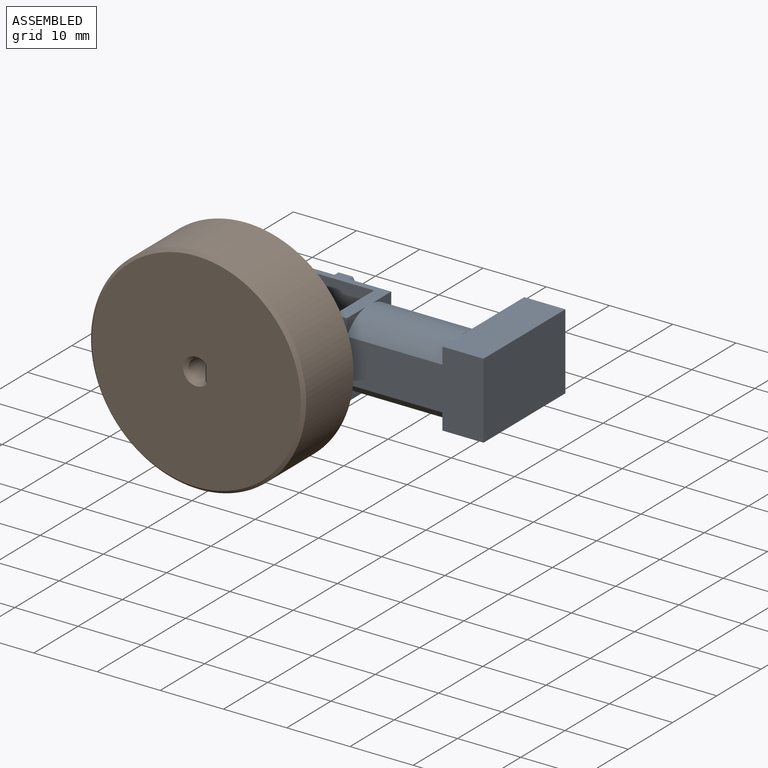
[diagram: assembled view]
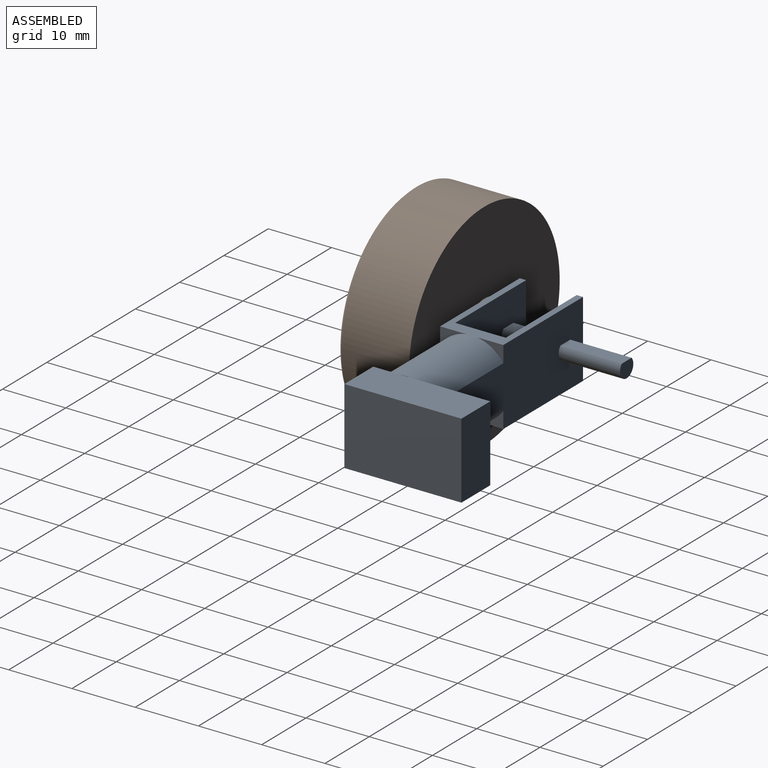
[diagram: assembled view, second angle]
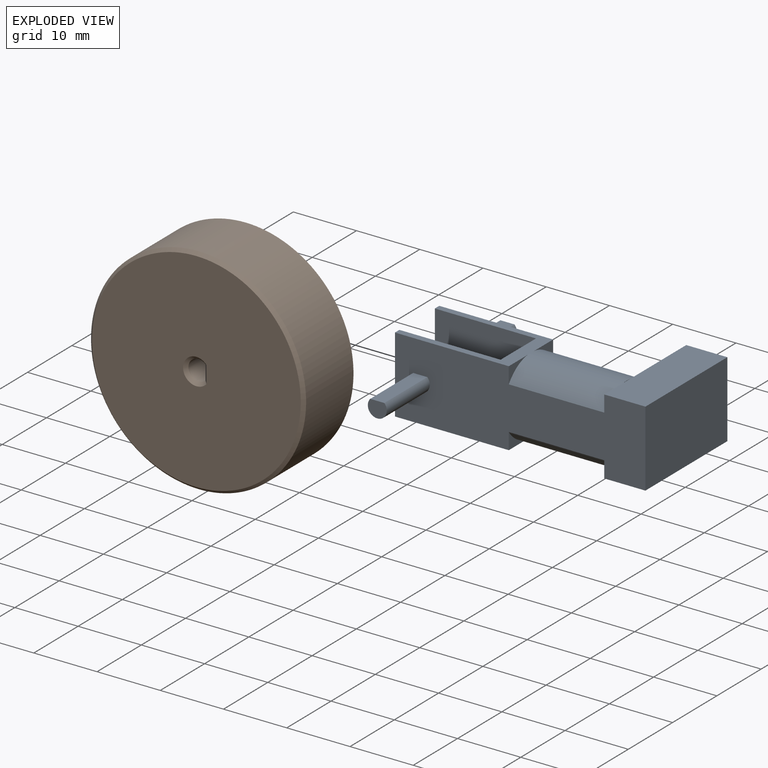
[diagram: exploded view]
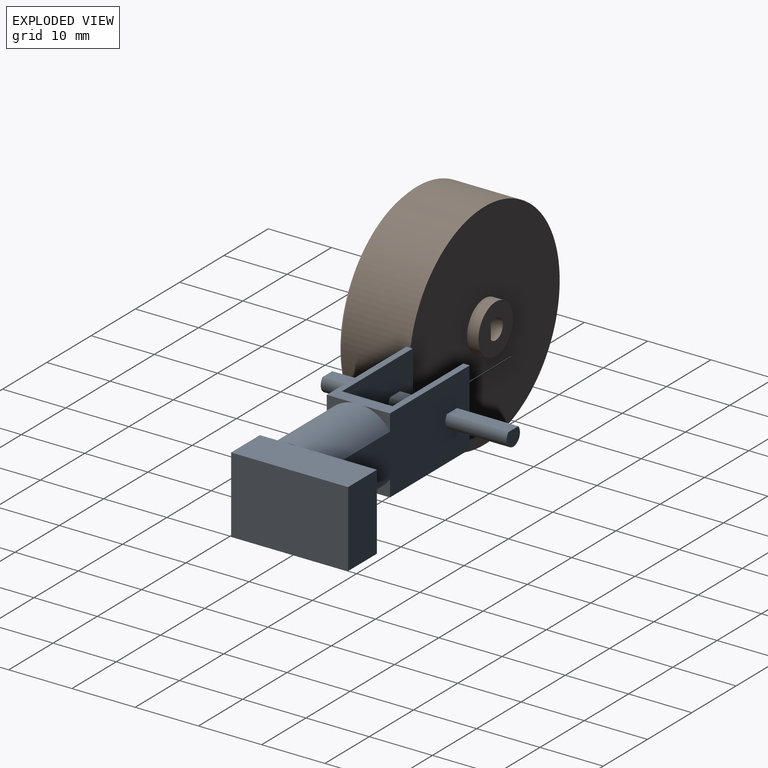
[diagram: exploded view, second angle]
FCSTD DOCUMENT  (FreeCAD 0.21R33668 +7 (Git))
Label: robot-motor-holder
License: All rights reserved
LicenseURL: https://en.wikipedia.org/wiki/All_rights_reserved
objects: Sketcher::SketchObject×7, PartDesign::Plane×6, PartDesign::Pad×4, App::Link×2, PartDesign::Pocket×2, PartDesign::AdditiveLoft×1, PartDesign::Mirrored×1, PartDesign::Body×1, App::LinkGroup×1
note: 29 computed .brp shape members not serialized (recipe doc carries the construction recipe); baked Part::Feature solids carry a one-line shape summary decoded from their .brp
EXTERNAL_REF file=Off-the-shelf/GW1812.FCStd obj=Body
EXTERNAL_REF file=robot-wheel.FCStd obj=Body

FEATURE [App::Link] Link  label="motor"
  LinkedObject = -> <external Off-the-shelf/GW1812.FCStd>#Body
FEATURE [PartDesign::Plane] DatumPlane
  AttachmentOffset = pos=(0,0,-4.1) rot=(0,0,1;0rad)
  Length = 60
  MapMode = 5
  Placement = pos=(-4.1,9e-16,-9e-16) rot=(0.57735,0.57735,0.57735;2.0944rad)
  ResizeMode = 0
  Support = -> [YZ_Plane]
  Width = 60
FEATURE [Sketcher::SketchObject] Sketch
  FullyConstrained = true
  MapMode = 5
  Placement = pos=(-4.1,9e-16,-9e-16) rot=(0.57735,0.57735,0.57735;2.0944rad)
  Support = -> [DatumPlane]
  sketch-geometry (14):
    g0: LineSegment StartX=-5.1 StartY=7 StartZ=0 EndX=5.1 EndY=7 EndZ=0
    g1: LineSegment StartX=5.1 StartY=7 StartZ=0 EndX=5.1 EndY=-7 EndZ=0
    g2: LineSegment StartX=5.1 StartY=-7 StartZ=0 EndX=-5.1 EndY=-7 EndZ=0
    g3: LineSegment StartX=-5.1 StartY=-7 StartZ=0 EndX=-5.1 EndY=7 EndZ=0
    g4: LineSegment StartX=-5.1 StartY=7 StartZ=0 EndX=-5.1 EndY=6.1 EndZ=0
    g5: LineSegment StartX=-5.1 StartY=6.1 StartZ=0 EndX=-3.9 EndY=6.1 EndZ=0
    g6: LineSegment StartX=-3.9 StartY=6.1 StartZ=0 EndX=-3.9 EndY=-6.1 EndZ=0
    g7: LineSegment StartX=-3.9 StartY=-6.1 StartZ=0 EndX=-5.1 EndY=-6.1 EndZ=0
    g8: LineSegment StartX=-5.1 StartY=-6.1 StartZ=0 EndX=-5.1 EndY=-7 EndZ=0
    g9: LineSegment StartX=5.1 StartY=7 StartZ=0 EndX=5.1 EndY=6.1 EndZ=0
    g10: LineSegment StartX=5.1 StartY=6.1 StartZ=0 EndX=3.9 EndY=6.1 EndZ=0
    g11: LineSegment StartX=3.9 StartY=6.1 StartZ=0 EndX=3.9 EndY=-6.1 EndZ=0
    g12: LineSegment StartX=3.9 StartY=-6.1 StartZ=0 EndX=5.1 EndY=-6.1 EndZ=0
    g13: LineSegment StartX=5.1 StartY=-6.1 StartZ=0 EndX=5.1 EndY=-7 EndZ=0
  constraints (39):
    c: Coincident(g0,g1)
    c: Coincident(g1,g2)
    c: Coincident(g2,g3)
    c: Coincident(g3,g0)
    c: Horizontal(g0)
    c: Horizontal(g2)
    c: Symmetric(g0,g1,g-1)
    c: DistanceX(g0,g0) = 10.2
    c: DistanceY(g2,g0) = 14
    c: Coincident(g0,g4)
    c: PointOnObject(g4,g3)
    c: Vertical(g4)
    c: Coincident(g4,g5)
    c: Horizontal(g5)
    c: Coincident(g5,g6)
    c: Vertical(g6)
    c: Coincident(g6,g7)
    c: PointOnObject(g7,g3)
    c: Horizontal(g7)
    c: Coincident(g7,g8)
    c: Coincident(g8,g2)
    c: DistanceY(g4,g4) = 0.9
    c: Coincident(g0,g9)
    c: PointOnObject(g9,g1)
    c: Vertical(g9)
    c: Coincident(g9,g10)
    c: Horizontal(g10)
    c: Coincident(g10,g11)
    c: Vertical(g11)
    c: Coincident(g11,g12)
    c: PointOnObject(g12,g1)
    c: Horizontal(g12)
    c: Coincident(g12,g13)
    c: Coincident(g13,g2)
    c: Equal(g9,g4)
    c: Equal(g4,g8)
    c: Equal(g8,g13)
    c: Equal(g7,g12)
    c: DistanceX(g5,g5) = 1.2
FEATURE [PartDesign::Pad] Pad
  Direction = (1,-1e-16,1e-16)
  Length = 18.4
  Length2 = 10
  Placement = pos=(-4.1,1e-15,-1e-15) rot=(0.57735,0.57735,0.57735;2.0944rad)
  Profile = -> Sketch
  ReferenceAxis = -> Sketch [N_Axis]
  Type = 0
FEATURE [PartDesign::Plane] DatumPlane001
  AttachmentOffset = pos=(0,0,0) rot=(0,0,1;1.5708rad)
  Length = 60
  MapMode = 5
  Placement = pos=(-4.1,-3.9,-2.3e-15) rot=(1,0,0;1.5708rad)
  ResizeMode = 0
  Support = -> [Pad]
  Width = 60
FEATURE [Sketcher::SketchObject] Sketch001
  FullyConstrained = false
  MapMode = 5
  Placement = pos=(-4.1,9e-16,-9e-16) rot=(0.57735,0.57735,0.57735;2.0944rad)
  Support = -> [DatumPlane]
  sketch-geometry (4):
    g0: LineSegment StartX=-5.1 StartY=7 StartZ=0 EndX=5.1 EndY=7 EndZ=0
    g1: LineSegment StartX=5.1 StartY=7 StartZ=0 EndX=5.1 EndY=-7 EndZ=0
    g2: LineSegment StartX=5.1 StartY=-7 StartZ=0 EndX=-5.1 EndY=-7 EndZ=0
    g3: LineSegment StartX=-5.1 StartY=-7 StartZ=0 EndX=-5.1 EndY=7 EndZ=0
  constraints (11):
    c: Coincident(g0,g1)
    c: Coincident(g1,g2)
    c: Coincident(g2,g3)
    c: Coincident(g3,g0)
    c: Horizontal(g0)
    c: Horizontal(g2)
    c: Vertical(g1)
    c: Vertical(g3)
    c: DistanceX(g0,g0) = 10.2
    c: DistanceY(g1,g1) = 14
    c: DistanceX(g0,g-1) = 5.1
FEATURE [PartDesign::Pad] Pad001
  BaseFeature = -> Pad
  Direction = (1,-1e-16,1e-16)
  Length = 2
  Length2 = 10
  Placement = pos=(-4.1,1e-15,-1e-15) rot=(0.57735,0.57735,0.57735;2.0944rad)
  Profile = -> Sketch001
  ReferenceAxis = -> Sketch001 [N_Axis]
  Reversed = true
  Type = 0
FEATURE [Sketcher::SketchObject] Sketch002
  FullyConstrained = true
  MapMode = 5
  Placement = pos=(-4.1,-3.9,-2.3e-15) rot=(1,0,0;1.5708rad)
  Support = -> [DatumPlane001]
  sketch-geometry (21):
    g0: Circle CenterX=1.5 CenterY=4.6 CenterZ=0 NormalX=0 NormalY=0 NormalZ=1 AngleXU=0 Radius=1
    g1: Circle CenterX=1.5 CenterY=-4.6 CenterZ=0 NormalX=0 NormalY=0 NormalZ=1 AngleXU=0 Radius=1
    g2: LineSegment StartX=1.5 StartY=4.6 StartZ=0 EndX=1.5 EndY=-4.6 EndZ=0
    g3: LineSegment StartX=0 StartY=5.01421 StartZ=0 EndX=0.5 EndY=5.01421 EndZ=0
    g4: LineSegment StartX=0.5 StartY=5.01421 StartZ=0 EndX=1.08579 EndY=5.6 EndZ=0
    g5: LineSegment StartX=1.08579 StartY=5.6 StartZ=0 EndX=1.91421 EndY=5.6 EndZ=0
    g6: LineSegment StartX=1.91421 StartY=5.6 StartZ=0 EndX=2.5 EndY=5.01421 EndZ=0
    g7: LineSegment StartX=2.5 StartY=5.01421 StartZ=0 EndX=20 EndY=5.01421 EndZ=0
    g8: LineSegment StartX=20 StartY=5.01421 StartZ=0 EndX=20 EndY=-6.1 EndZ=0
    g9: LineSegment StartX=20 StartY=-6.1 StartZ=0 EndX=6.58579 EndY=-6.1 EndZ=0
    g10: LineSegment StartX=6.58579 StartY=-6.1 StartZ=0 EndX=5.5 EndY=-5.01421 EndZ=0
    g11: LineSegment StartX=5.5 StartY=-5.01421 StartZ=0 EndX=2.5 EndY=-5.01421 EndZ=0
    g12: LineSegment StartX=2.5 StartY=-5.01421 StartZ=0 EndX=1.91421 EndY=-5.6 EndZ=0
    g13: LineSegment StartX=1.91421 StartY=-5.6 StartZ=0 EndX=1.08579 EndY=-5.6 EndZ=0
    g14: LineSegment StartX=1.08579 StartY=-5.6 StartZ=0 EndX=0.5 EndY=-5.01421 EndZ=0
    g15: LineSegment StartX=0.5 StartY=-5.01421 StartZ=0 EndX=0 EndY=-5.01421 EndZ=0
    g16: LineSegment StartX=0 StartY=-5.01421 StartZ=0 EndX=0 EndY=5.01421 EndZ=0
    g17: LineSegment StartX=2.5 StartY=5.01421 StartZ=0 EndX=15.8 EndY=5.01421 EndZ=0
    g18: LineSegment StartX=15.8 StartY=5.01421 StartZ=0 EndX=15.8 EndY=6.1 EndZ=0
    g19: LineSegment StartX=15.8 StartY=6.1 StartZ=0 EndX=20 EndY=6.1 EndZ=0
    g20: LineSegment StartX=20 StartY=6.1 StartZ=0 EndX=20 EndY=5.01421 EndZ=0
  constraints (58):
    c: Coincident(g2,g0)
    c: Coincident(g2,g1)
    c: Equal(g0,g1)
    c: Symmetric(g0,g1,g-1)
    c: Diameter(g0) = 2
    c: DistanceY(g1,g0) = 9.2
    c: DistanceX(g-1,g0) = 1.5
    c: PointOnObject(g3,g-2)
    c: Horizontal(g3)
    c: Coincident(g3,g4)
    c: Tangent(g4,g0)
    c: Coincident(g4,g5)
    c: Horizontal(g5)
    c: Coincident(g5,g6)
    c: Tangent(g6,g0)
    c: Coincident(g6,g7)
    c: Horizontal(g7)
    c: Coincident(g7,g8)
    c: Vertical(g8)
    c: Coincident(g8,g9)
    c: Horizontal(g9)
    c: Coincident(g9,g10)
    c: Coincident(g10,g11)
    c: Horizontal(g11)
    c: Coincident(g11,g12)
    c: Tangent(g12,g1)
    c: Coincident(g12,g13)
    c: Horizontal(g13)
    c: Coincident(g13,g14)
    c: Tangent(g14,g1)
    c: Coincident(g14,g15)
    c: Horizontal(g15)
    c: Coincident(g15,g16)
    c: Coincident(g16,g3)
    c: Symmetric(g3,g15,g-1)
    c: Angle(g4,g3) = 2.35619
    c: Equal(g4,g5)
    c: Equal(g5,g6)
    c: Tangent(g5,g0)
    c: PointOnObject(g3,g7)
    c: PointOnObject(g14,g11)
    c: Equal(g14,g13)
    c: Equal(g13,g12)
    c: Angle(g15,g14) = 2.35619
    c: DistanceX(g11,g11) = 3
    c: Angle(g9,g10) = 2.35619
    c: DistanceY(g9,g-1) = 6.1
    c: DistanceX(g-1,g7) = 20
    c: Coincident(g6,g17)
    c: PointOnObject(g17,g7)
    c: Coincident(g17,g18)
    c: Vertical(g18)
    c: Coincident(g18,g19)
    c: Horizontal(g19)
    c: Coincident(g19,g20)
    c: Coincident(g20,g8)
    c: Symmetric(g8,g19,g-1)
    c: DistanceX(g-1,g18) = 15.8
FEATURE [PartDesign::Pocket] Pocket
  BaseFeature = -> Pad001
  Direction = (2e-16,1,2e-16)
  Length = 5
  Length2 = 5
  Placement = pos=(-4.1,1e-15,-1e-15) rot=(0.57735,0.57735,0.57735;2.0944rad)
  Profile = -> Sketch002
  ReferenceAxis = -> Sketch002 [N_Axis]
  Type = 1
FEATURE [PartDesign::Plane] DatumPlane002
  Length = 60
  MapMode = 5
  Placement = pos=(14.3,1e-15,1.6e-15) rot=(0.57735,0.57735,0.57735;2.0944rad)
  ResizeMode = 0
  Support = -> [Pad]
  Width = 60
FEATURE [Sketcher::SketchObject] Sketch003
  FullyConstrained = true
  MapMode = 5
  Placement = pos=(14.3,1e-15,1.6e-15) rot=(0.57735,0.57735,0.57735;2.0944rad)
  Support = -> [DatumPlane002]
  sketch-geometry (8):
    g0: LineSegment StartX=-5.1 StartY=7 StartZ=0 EndX=5.1 EndY=7 EndZ=0
    g1: LineSegment StartX=5.1 StartY=7 StartZ=0 EndX=5.1 EndY=6.1 EndZ=0
    g2: LineSegment StartX=5.1 StartY=6.1 StartZ=0 EndX=-5.1 EndY=6.1 EndZ=0
    g3: LineSegment StartX=-5.1 StartY=6.1 StartZ=0 EndX=-5.1 EndY=7 EndZ=0
    g4: LineSegment StartX=-5.1 StartY=-6.1 StartZ=0 EndX=5.1 EndY=-6.1 EndZ=0
    g5: LineSegment StartX=5.1 StartY=-6.1 StartZ=0 EndX=5.1 EndY=-7 EndZ=0
    g6: LineSegment StartX=5.1 StartY=-7 StartZ=0 EndX=-5.1 EndY=-7 EndZ=0
    g7: LineSegment StartX=-5.1 StartY=-7 StartZ=0 EndX=-5.1 EndY=-6.1 EndZ=0
  constraints (22):
    c: Coincident(g0,g1)
    c: Coincident(g1,g2)
    c: Coincident(g2,g3)
    c: Coincident(g3,g0)
    c: Horizontal(g2)
    c: Vertical(g1)
    c: Vertical(g3)
    c: Coincident(g4,g5)
    c: Coincident(g5,g6)
    c: Coincident(g6,g7)
    c: Coincident(g7,g4)
    c: Horizontal(g4)
    c: Horizontal(g6)
    c: Vertical(g5)
    c: Vertical(g7)
    c: Equal(g3,g7)
    c: Equal(g4,g2)
    c: Symmetric(g0,g0,g-2)
    c: Symmetric(g0,g6,g-1)
    c: DistanceX(g0,g0) = 10.2
    c: DistanceY(g5,g0) = 14
    c: DistanceY(g1,g1) = 0.9
FEATURE [PartDesign::Plane] DatumPlane003
  AttachmentOffset = pos=(0,0,5) rot=(0,0,1;0rad)
  Length = 60
  MapMode = 5
  Placement = pos=(19.3,2.1e-15,2.7e-15) rot=(0.57735,0.57735,0.57735;2.0944rad)
  ResizeMode = 0
  Support = -> [DatumPlane002]
  Width = 60
FEATURE [Sketcher::SketchObject] Sketch004
  FullyConstrained = true
  MapMode = 5
  Placement = pos=(19.3,2.1e-15,2.7e-15) rot=(0.57735,0.57735,0.57735;2.0944rad)
  Support = -> [DatumPlane003]
  sketch-geometry (8):
    g0: ArcOfCircle CenterX=0 CenterY=0 CenterZ=0 NormalX=0 NormalY=0 NormalZ=1 AngleXU=0 Radius=6.1 StartAngle=0.580724 EndAngle=2.56087
    g1: ArcOfCircle CenterX=0 CenterY=0 CenterZ=0 NormalX=0 NormalY=0 NormalZ=1 AngleXU=0 Radius=6.1 StartAngle=3.72232 EndAngle=5.70246
    g2: LineSegment StartX=-5.1 StartY=3.34664 StartZ=0 EndX=-5.1 EndY=7 EndZ=0
    g3: LineSegment StartX=-5.1 StartY=7 StartZ=0 EndX=5.1 EndY=7 EndZ=0
    g4: LineSegment StartX=5.1 StartY=7 StartZ=0 EndX=5.1 EndY=3.34664 EndZ=0
    g5: LineSegment StartX=5.1 StartY=-3.34664 StartZ=0 EndX=5.1 EndY=-7 EndZ=0
    g6: LineSegment StartX=5.1 StartY=-7 StartZ=0 EndX=-5.1 EndY=-7 EndZ=0
    g7: LineSegment StartX=-5.1 StartY=-7 StartZ=0 EndX=-5.1 EndY=-3.34664 EndZ=0
  constraints (24):
    c: Coincident(g0,g-1)
    c: Coincident(g1,g0)
    c: Equal(g1,g0)
    c: Coincident(g0,g2)
    c: Coincident(g2,g3)
    c: Horizontal(g3)
    c: Coincident(g3,g4)
    c: Coincident(g4,g0)
    c: Coincident(g1,g5)
    c: Coincident(g5,g6)
    c: Coincident(g6,g7)
    c: Coincident(g7,g1)
    c: Vertical(g2)
    c: Vertical(g4)
    c: Vertical(g5)
    c: Vertical(g7)
    c: Horizontal(g6)
    c: Equal(g6,g3)
    c: Equal(g2,g4)
    c: Equal(g4,g7)
    c: Equal(g7,g5)
    c: DistanceX(g3,g3) = 10.2
    c: DistanceY(g5,g3) = 14
    c: Diameter(g0) = 12.2
FEATURE [PartDesign::AdditiveLoft] AdditiveLoft
  BaseFeature = -> Pocket
  Closed = false
  Placement = pos=(-4.1,1e-15,-1e-15) rot=(0.57735,0.57735,0.57735;2.0944rad)
  Profile = -> Sketch003
  Ruled = false
  Sections = -> [Sketch004]
FEATURE [PartDesign::Pad] Pad002
  BaseFeature = -> AdditiveLoft
  Direction = (1,0,-2e-16)
  Length = 8
  Length2 = 10
  Placement = pos=(-4.1,1e-15,-1e-15) rot=(0.57735,0.57735,0.57735;2.0944rad)
  Profile = -> Sketch004
  ReferenceAxis = -> Sketch004 [N_Axis]
  Type = 0
FEATURE [PartDesign::Mirrored] Mirrored
  BaseFeature = -> Pad002
  MirrorPlane = -> Sketch004 [H_Axis]
  Originals = -> [Pad002,AdditiveLoft]
  Placement = pos=(-4.1,1e-15,-1e-15) rot=(0.57735,0.57735,0.57735;2.0944rad)
FEATURE [PartDesign::Plane] DatumPlane004
  AttachmentOffset = pos=(0,0,0) rot=(0,0,1;1.5708rad)
  Length = 60
  MapMode = 5
  Placement = pos=(-4.1,2e-16,7) rot=(0,0,1;0rad)
  ResizeMode = 0
  Support = -> [Pad]
  Width = 60
FEATURE [App::Link] Link001  label="wheel"
  LinkPlacement = pos=(0,-19,0) rot=(0,0,1;0rad)
  LinkedObject = -> <external robot-wheel.FCStd>#Body
  Placement = pos=(0,-19,0) rot=(0,0,1;0rad)
FEATURE [PartDesign::Plane] DatumPlane005
  AttachmentOffset = pos=(0,0,0.5) rot=(0,0,1;0rad)
  Length = 60
  MapMode = 5
  Placement = pos=(0.5,-1e-16,1e-16) rot=(0.57735,0.57735,0.57735;2.0944rad)
  ResizeMode = 0
  Support = -> [YZ_Plane]
  Width = 60
FEATURE [Sketcher::SketchObject] Sketch005
  FullyConstrained = true
  MapMode = 5
  Placement = pos=(0.5,-1e-16,1e-16) rot=(0.57735,0.57735,0.57735;2.0944rad)
  Support = -> [DatumPlane005]
  sketch-geometry (8):
    g0: LineSegment StartX=0 StartY=8.73205 StartZ=0 EndX=-1 EndY=7 EndZ=0
    g1: LineSegment StartX=-1 StartY=7 StartZ=0 EndX=1 EndY=7 EndZ=0
    g2: LineSegment StartX=1 StartY=7 StartZ=0 EndX=0 EndY=8.73205 EndZ=0
    g3: Circle CenterX=0 CenterY=7.57735 CenterZ=0 NormalX=0 NormalY=0 NormalZ=1 AngleXU=0 Radius=1.1547
    g4: LineSegment StartX=0 StartY=-8.73205 StartZ=0 EndX=1 EndY=-7 EndZ=0
    g5: LineSegment StartX=1 StartY=-7 StartZ=0 EndX=-1 EndY=-7 EndZ=0
    g6: LineSegment StartX=-1 StartY=-7 StartZ=0 EndX=0 EndY=-8.73205 EndZ=0
    g7: Circle CenterX=0 CenterY=-7.57735 CenterZ=0 NormalX=0 NormalY=0 NormalZ=1 AngleXU=0 Radius=1.1547
  constraints (23):
    c: Coincident(g0,g1)
    c: Coincident(g1,g2)
    c: Coincident(g2,g0)
    c: Equal(g0,g1)
    c: Equal(g0,g2)
    c: PointOnObject(g0,g3)
    c: PointOnObject(g1,g3)
    c: PointOnObject(g2,g3)
    c: PointOnObject(g3,g-2)
    c: PointOnObject(g2,g-2)
    c: Coincident(g4,g5)
    c: Coincident(g5,g6)
    c: Coincident(g6,g4)
    c: Equal(g4,g5)
    c: Equal(g4,g6)
    c: PointOnObject(g4,g7)
    c: PointOnObject(g5,g7)
    c: PointOnObject(g6,g7)
    c: PointOnObject(g6,g-2)
    c: Equal(g7,g3)
    c: Symmetric(g7,g3,g-1)
    c: DistanceX(g1,g1) = 2
    c: DistanceY(g4,g1) = 14
FEATURE [PartDesign::Pad] Pad003
  BaseFeature = -> Mirrored
  Direction = (1,-1e-16,1e-16)
  Length = 21
  Length2 = 10
  Placement = pos=(-4.1,1e-15,-1e-15) rot=(0.57735,0.57735,0.57735;2.0944rad)
  Profile = -> Sketch005
  ReferenceAxis = -> Sketch005 [N_Axis]
  Type = 0
FEATURE [Sketcher::SketchObject] Sketch006
  FullyConstrained = true
  MapMode = 5
  Placement = pos=(-4.1,9e-16,-9e-16) rot=(0.57735,0.57735,0.57735;2.0944rad)
  Support = -> [DatumPlane]
  sketch-geometry (8):
    g0: LineSegment StartX=-5 StartY=6.1 StartZ=0 EndX=5 EndY=6.1 EndZ=0
    g1: LineSegment StartX=5 StartY=6.1 StartZ=0 EndX=5 EndY=6 EndZ=0
    g2: LineSegment StartX=5 StartY=6 StartZ=0 EndX=-5 EndY=6 EndZ=0
    g3: LineSegment StartX=-5 StartY=6 StartZ=0 EndX=-5 EndY=6.1 EndZ=0
    g4: LineSegment StartX=-5 StartY=-6 StartZ=0 EndX=5 EndY=-6 EndZ=0
    g5: LineSegment StartX=5 StartY=-6 StartZ=0 EndX=5 EndY=-6.1 EndZ=0
    g6: LineSegment StartX=5 StartY=-6.1 StartZ=0 EndX=-5 EndY=-6.1 EndZ=0
    g7: LineSegment StartX=-5 StartY=-6.1 StartZ=0 EndX=-5 EndY=-6 EndZ=0
  constraints (21):
    c: Coincident(g0,g1)
    c: Coincident(g1,g2)
    c: Coincident(g2,g3)
    c: Coincident(g3,g0)
    c: Horizontal(g2)
    c: Vertical(g1)
    c: Vertical(g3)
    c: Coincident(g4,g5)
    c: Coincident(g5,g6)
    c: Coincident(g6,g7)
    c: Coincident(g7,g4)
    c: Vertical(g5)
    c: Vertical(g7)
    c: Symmetric(g6,g5,g-2)
    c: Symmetric(g0,g0,g-2)
    c: DistanceX(g0,g0) = 10
    c: Equal(g3,g7)
    c: DistanceY(g7,g7) = 0.1
    c: Symmetric(g4,g2,g-1)
    c: DistanceY(g6,g0) = 12.2
    c: Horizontal(g4)
FEATURE [PartDesign::Pocket] Pocket001
  BaseFeature = -> Pad003
  Direction = (-1,1e-16,-1e-16)
  Length = 16
  Length2 = 5
  Placement = pos=(-4.1,1e-15,-1e-15) rot=(0.57735,0.57735,0.57735;2.0944rad)
  Profile = -> Sketch006
  ReferenceAxis = -> Sketch006 [N_Axis]
  Reversed = true
  Type = 0
FEATURE [PartDesign::Body] Body  label="motor-holder"
  Group = -> [DatumPlane,Sketch,Pad,DatumPlane001,Sketch001,Pad001,Sketch002,Pocket,DatumPlane002,Sketch003,DatumPlane003,Sketch004,AdditiveLoft,Pad002,Mirrored,DatumPlane004,DatumPlane005,Sketch005,Pad003,Sketch006,Pocket001]
  Origin = -> Origin
  Tip = -> Pocket001
FEATURE [App::LinkGroup] LinkGroup  label="traction-assy"
  ElementList = -> [Body,Link,Link001]
  LinkMode = 1

RESOLVED EXTERNAL PARTS (link-assembly join: the EXTERNAL_REF files above that resolve inside this repo's crawl, each included once):
---- part Off-the-shelf/GW1812.FCStd = doc fcstd_b8d2b04b297e ----
FCSTD DOCUMENT  (FreeCAD 0.21R33668 +7 (Git))
Label: GW1812
License: All rights reserved
LicenseURL: https://en.wikipedia.org/wiki/All_rights_reserved
objects: Sketcher::SketchObject×4, PartDesign::Pad×4, PartDesign::Plane×2, PartDesign::Body×1
note: 15 computed .brp shape members not serialized (recipe doc carries the construction recipe); baked Part::Feature solids carry a one-line shape summary decoded from their .brp

FEATURE [Sketcher::SketchObject] Sketch
  FullyConstrained = true
  MapMode = 5
  Support = -> [XY_Plane]
  sketch-geometry (8):
    g0: LineSegment StartX=-4 StartY=5 StartZ=0 EndX=14 EndY=5 EndZ=0
    g1: LineSegment StartX=14 StartY=5 StartZ=0 EndX=14 EndY=-5 EndZ=0
    g2: LineSegment StartX=14 StartY=-5 StartZ=0 EndX=-4 EndY=-5 EndZ=0
    g3: LineSegment StartX=-4 StartY=5 StartZ=0 EndX=-4 EndY=4 EndZ=0
    g4: LineSegment StartX=-4 StartY=4 StartZ=0 EndX=12 EndY=4 EndZ=0
    g5: LineSegment StartX=12 StartY=4 StartZ=0 EndX=12 EndY=-4 EndZ=0
    g6: LineSegment StartX=12 StartY=-4 StartZ=0 EndX=-4 EndY=-4 EndZ=0
    g7: LineSegment StartX=-4 StartY=-4 StartZ=0 EndX=-4 EndY=-5 EndZ=0
  constraints (23):
    c: Coincident(g0,g1)
    c: Coincident(g1,g2)
    c: Horizontal(g0)
    c: Horizontal(g2)
    c: Vertical(g1)
    c: DistanceX(g0,g-1) = 4
    c: DistanceY(g2,g0) = 10
    c: Symmetric(g0,g2,g-1)
    c: DistanceX(g0,g0) = 18
    c: Coincident(g0,g3)
    c: Vertical(g3)
    c: Coincident(g3,g4)
    c: Horizontal(g4)
    c: Coincident(g4,g5)
    c: Vertical(g5)
    c: Coincident(g5,g6)
    c: Horizontal(g6)
    c: Coincident(g6,g7)
    c: Coincident(g7,g2)
    c: Vertical(g7)
    c: Equal(g3,g7)
    c: DistanceY(g7,g7) = 1
    c: DistanceX(g5,g1) = 2
FEATURE [PartDesign::Pad] Pad  label="gearbox"
  Direction = (0,0,1)
  Length = 12
  Length2 = 10
  Midplane = true
  Profile = -> Sketch
  ReferenceAxis = -> Sketch [N_Axis]
  Type = 0
FEATURE [Sketcher::SketchObject] Sketch001
  FullyConstrained = true
  MapMode = 5
  Placement = pos=(0,0,0) rot=(1,0,0;1.5708rad)
  Support = -> [XZ_Plane]
  sketch-geometry (3):
    g0: ArcOfCircle CenterX=0 CenterY=0 CenterZ=0 NormalX=0 NormalY=0 NormalZ=1 AngleXU=0 Radius=1.5 StartAngle=2.41186 EndAngle=7.01291
    g1: LineSegment StartX=-1.11803 StartY=1 StartZ=0 EndX=1.11803 EndY=1 EndZ=0
    g2: GeomPoint X=0 Y=-1.5 Z=0
  constraints (8):
    c: Coincident(g0,g-1)
    c: Coincident(g1,g0)
    c: Coincident(g1,g0)
    c: Horizontal(g1)
    c: PointOnObject(g2,g0)
    c: PointOnObject(g2,g-2)
    c: DistanceY(g2,g0) = 2.5
    c: Diameter(g0) = 3
FEATURE [PartDesign::Pad] Pad001  label="shaft"
  BaseFeature = -> Pad
  Direction = (0,-1,-2e-16)
  Length = 29.4
  Length2 = 10
  Midplane = true
  Profile = -> Sketch001
  ReferenceAxis = -> Sketch001 [N_Axis]
  Type = 0
FEATURE [PartDesign::Plane] DatumPlane  label="motor-gearbox joint"
  Length = 60
  MapMode = 5
  Placement = pos=(14,0,0) rot=(0.57735,0.57735,0.57735;2.0944rad)
  ResizeMode = 0
  Support = -> [Pad001]
  Width = 60
FEATURE [Sketcher::SketchObject] Sketch002
  FullyConstrained = true
  MapMode = 5
  Placement = pos=(14,0,0) rot=(0.57735,0.57735,0.57735;2.0944rad)
  Support = -> [DatumPlane]
  sketch-geometry (4):
    g0: ArcOfCircle CenterX=0 CenterY=0 CenterZ=0 NormalX=0 NormalY=0 NormalZ=1 AngleXU=0 Radius=6.05 StartAngle=0.59803 EndAngle=2.54356
    g1: ArcOfCircle CenterX=0 CenterY=0 CenterZ=0 NormalX=0 NormalY=0 NormalZ=1 AngleXU=0 Radius=6.05 StartAngle=3.73962 EndAngle=5.68516
    g2: LineSegment StartX=-5 StartY=-3.40624 StartZ=0 EndX=-5 EndY=3.40624 EndZ=0
    g3: LineSegment StartX=5 StartY=3.40624 StartZ=0 EndX=5 EndY=-3.40624 EndZ=0
  constraints (12):
    c: Coincident(g0,g-1)
    c: Coincident(g1,g0)
    c: Coincident(g2,g1)
    c: Coincident(g2,g0)
    c: Coincident(g3,g0)
    c: Coincident(g3,g1)
    c: Vertical(g3)
    c: Vertical(g2)
    c: Equal(g1,g0)
    c: Diameter(g0) = 12.1
    c: DistanceX(g0,g0) = 10
    c: Equal(g3,g2)
FEATURE [PartDesign::Pad] Pad002  label="motor"
  BaseFeature = -> Pad001
  Direction = (1,0,0)
  Length = 15.1
  Length2 = 10
  Profile = -> Sketch002
  ReferenceAxis = -> Sketch002 [N_Axis]
  Type = 0
FEATURE [PartDesign::Plane] DatumPlane001  label="motor-encoder joint"
  Length = 60
  MapMode = 5
  Placement = pos=(29.1,0,0) rot=(0.57735,0.57735,0.57735;2.0944rad)
  ResizeMode = 0
  Support = -> [Pad002]
  Width = 60
FEATURE [Sketcher::SketchObject] Sketch003
  FullyConstrained = true
  MapMode = 5
  Placement = pos=(29.1,0,0) rot=(0.57735,0.57735,0.57735;2.0944rad)
  Support = -> [DatumPlane001]
  sketch-geometry (4):
    g0: LineSegment StartX=-5 StartY=6 StartZ=0 EndX=13.5 EndY=6 EndZ=0
    g1: LineSegment StartX=13.5 StartY=6 StartZ=0 EndX=13.5 EndY=-6 EndZ=0
    g2: LineSegment StartX=13.5 StartY=-6 StartZ=0 EndX=-5 EndY=-6 EndZ=0
    g3: LineSegment StartX=-5 StartY=-6 StartZ=0 EndX=-5 EndY=6 EndZ=0
  constraints (11):
    c: Coincident(g0,g1)
    c: Coincident(g1,g2)
    c: Coincident(g2,g3)
    c: Coincident(g3,g0)
    c: Horizontal(g0)
    c: Horizontal(g2)
    c: Vertical(g1)
    c: DistanceX(g0,g0) = 18.5
    c: DistanceY(g3,g3) = 12
    c: Symmetric(g0,g2,g-1)
    c: DistanceX(g2,g-1) = 5
FEATURE [PartDesign::Pad] Pad003  label="encoder"
  BaseFeature = -> Pad002
  Direction = (1,0,0)
  Length = 6.5
  Length2 = 10
  Profile = -> Sketch003
  ReferenceAxis = -> Sketch003 [N_Axis]
  Type = 0
FEATURE [PartDesign::Body] Body  label="GW1812"
  Group = -> [Sketch,Pad,Sketch001,Pad001,DatumPlane,Sketch002,Pad002,DatumPlane001,Sketch003,Pad003]
  Origin = -> Origin
  Tip = -> Pad003
---- part robot-wheel.FCStd = doc fcstd_ed1d7fc747c6 ----
FCSTD DOCUMENT  (FreeCAD 0.21R33668 +7 (Git))
Label: robot-wheel
License: All rights reserved
LicenseURL: https://en.wikipedia.org/wiki/All_rights_reserved
objects: Sketcher::SketchObject×2, PartDesign::Revolution×1, PartDesign::Pocket×1, PartDesign::Chamfer×1, PartDesign::Body×1
note: 9 computed .brp shape members not serialized (recipe doc carries the construction recipe); baked Part::Feature solids carry a one-line shape summary decoded from their .brp

FEATURE [Sketcher::SketchObject] Sketch
  FullyConstrained = true
  MapMode = 5
  Placement = pos=(0,0,0) rot=(0.57735,0.57735,0.57735;2.0944rad)
  Support = -> [YZ_Plane]
  sketch-geometry (6):
    g0: LineSegment StartX=11.2 StartY=17 StartZ=0 EndX=0 EndY=17 EndZ=0
    g1: LineSegment StartX=0 StartY=17 StartZ=0 EndX=0 EndY=0 EndZ=0
    g2: LineSegment StartX=0 StartY=0 StartZ=0 EndX=13 EndY=0 EndZ=0
    g3: LineSegment StartX=11.2 StartY=17 StartZ=0 EndX=11.2 EndY=3.9 EndZ=0
    g4: LineSegment StartX=13 StartY=3.9 StartZ=0 EndX=13 EndY=0 EndZ=0
    g5: LineSegment StartX=11.2 StartY=3.9 StartZ=0 EndX=13 EndY=3.9 EndZ=0
  constraints (17):
    c: Horizontal(g0)
    c: Coincident(g0,g1)
    c: Vertical(g1)
    c: Coincident(g1,g2)
    c: Horizontal(g2)
    c: Coincident(g0,g3)
    c: Vertical(g3)
    c: Coincident(g4,g2)
    c: Vertical(g4)
    c: DistanceY(g1,g1) = 17
    c: DistanceY(g4,g4) = 3.9
    c: DistanceX(g2,g2) = 13
    c: Coincident(g1,g-1)
    c: DistanceX(g0,g0) = 11.2
    c: Coincident(g5,g4)
    c: Coincident(g3,g5)
    c: Horizontal(g5)
FEATURE [PartDesign::Revolution] Revolution  label="base"
  Angle = 360
  Axis = (3e-16,1,-2e-16)
  Base = (0,0,0)
  Placement = pos=(0,0,0) rot=(0.57735,0.57735,0.57735;2.0944rad)
  Profile = -> Sketch
  ReferenceAxis = -> Sketch [H_Axis]
FEATURE [Sketcher::SketchObject] Sketch001
  FullyConstrained = true
  MapMode = 5
  Placement = pos=(0,0,0) rot=(1,0,0;1.5708rad)
  Support = -> [XZ_Plane]
  sketch-geometry (3):
    g0: ArcOfCircle CenterX=0 CenterY=0 CenterZ=0 NormalX=0 NormalY=0 NormalZ=1 AngleXU=0 Radius=1.6 StartAngle=0.812756 EndAngle=5.47043
    g1: LineSegment StartX=1.1 StartY=1.1619 StartZ=0 EndX=1.1 EndY=-1.1619 EndZ=0
    g2: GeomPoint X=-1.6 Y=0 Z=0
  constraints (8):
    c: Coincident(g0,g-1)
    c: Coincident(g1,g0)
    c: Coincident(g1,g0)
    c: Diameter(g0) = 3.2
    c: Vertical(g1)
    c: PointOnObject(g2,g0)
    c: PointOnObject(g2,g-1)
    c: DistanceX(g2,g0) = 2.7
FEATURE [PartDesign::Pocket] Pocket  label="d-cut"
  BaseFeature = -> Revolution
  Direction = (0,1,2e-16)
  Length = 10
  Length2 = 5
  Placement = pos=(0,0,0) rot=(0.57735,0.57735,0.57735;2.0944rad)
  Profile = -> Sketch001
  ReferenceAxis = -> Sketch001 [N_Axis]
  Type = 1
FEATURE [PartDesign::Chamfer] Chamfer
  Angle = 45
  Base = -> Pocket [Face3]
  BaseFeature = -> Pocket
  ChamferType = 0
  FlipDirection = false
  Placement = pos=(0,0,0) rot=(0.57735,0.57735,0.57735;2.0944rad)
  Size = 0.5
  Size2 = 1
  SupportTransform = false
  UseAllEdges = false
FEATURE [PartDesign::Body] Body  label="wheel"
  Group = -> [Sketch,Revolution,Sketch001,Pocket,Chamfer]
  Origin = -> Origin
  Tip = -> Chamfer
